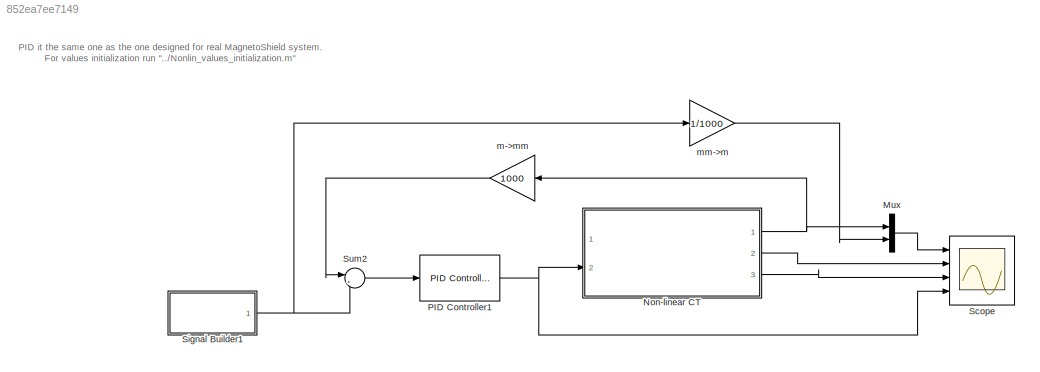
MODEL slx_852ea7ee7149
KIND model
CONFIG AbsTol = auto
CONFIG EnableMultiTasking = off
CONFIG FixedStep = auto
CONFIG MaxStep = auto
CONFIG MinStep = auto
CONFIG RelTol = 1e-3
CONFIG SampleTimeConstraint = Unconstrained
CONFIG Solver = VariableStepAuto
CONFIG SolverName = VariableStepAuto
CONFIG StartTime = 0.0
CONFIG StopTime = 15
BLOCK [Mux] Mux
  DisplayOption = bar
  Inputs = 2
  Ports = [2, 1]
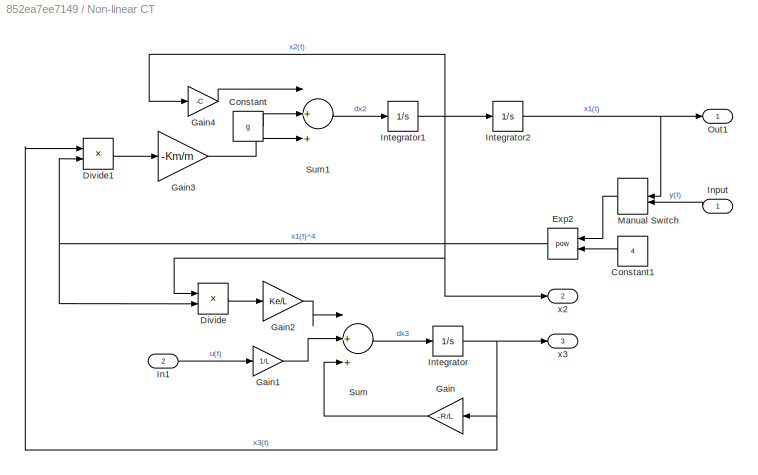
BLOCK [SubSystem] Non-linear CT
  Ports = [2, 3]
  RequestExecContextInheritance = off
BLOCK [Constant] Non-linear CT/Constant
  Value = g
BLOCK [Constant] Non-linear CT/Constant1
  Value = 4
BLOCK [Product] Non-linear CT/Divide
  InputSameDT = off
  Inputs = */
  OutDataTypeStr = Inherit: Inherit via internal rule
  Ports = [2, 1]
  RndMeth = Floor
  SaturateOnIntegerOverflow = off
BLOCK [Product] Non-linear CT/Divide1
  InputSameDT = off
  Inputs = */
  OutDataTypeStr = Inherit: Inherit via internal rule
  Ports = [2, 1]
  RndMeth = Floor
  SaturateOnIntegerOverflow = off
BLOCK [Math] Non-linear CT/Exp2
  Operator = pow
  Ports = [2, 1]
BLOCK [Gain] Non-linear CT/Gain
  Gain = -R/L
  OutDataTypeStr = Inherit: Inherit via internal rule
  ParamDataTypeStr = Inherit: Inherit via internal rule
  SaturateOnIntegerOverflow = off
BLOCK [Gain] Non-linear CT/Gain1
  Gain = 1/L
  OutDataTypeStr = Inherit: Inherit via internal rule
  ParamDataTypeStr = Inherit: Inherit via internal rule
  SaturateOnIntegerOverflow = off
BLOCK [Gain] Non-linear CT/Gain2
  Gain = Ke/L
  OutDataTypeStr = Inherit: Inherit via internal rule
  ParamDataTypeStr = Inherit: Inherit via internal rule
  SaturateOnIntegerOverflow = off
BLOCK [Gain] Non-linear CT/Gain3
  Gain = -Km/m
  OutDataTypeStr = Inherit: Inherit via internal rule
  ParamDataTypeStr = Inherit: Inherit via internal rule
  SaturateOnIntegerOverflow = off
BLOCK [Gain] Non-linear CT/Gain4
  Gain = -C
  OutDataTypeStr = Inherit: Inherit via internal rule
  ParamDataTypeStr = Inherit: Inherit via internal rule
  SaturateOnIntegerOverflow = off
BLOCK [Inport] Non-linear CT/In1
  IconDisplay = Signal name
  Port = 2
BLOCK [Inport] Non-linear CT/Input
  IconDisplay = Signal name
BLOCK [Integrator] Non-linear CT/Integrator
  Ports = [1, 1]
BLOCK [Integrator] Non-linear CT/Integrator1
  Ports = [1, 1]
BLOCK [Integrator] Non-linear CT/Integrator2
  InitialCondition = 0.017
  Ports = [1, 1]
BLOCK [ManualSwitch] Non-linear CT/Manual Switch
BLOCK [Outport] Non-linear CT/Out1
  IconDisplay = Signal name
BLOCK [Sum] Non-linear CT/Sum
  InputSameDT = off
  Inputs = |+++
  OutDataTypeStr = Inherit: Inherit via internal rule
  Ports = [3, 1]
  SaturateOnIntegerOverflow = off
BLOCK [Sum] Non-linear CT/Sum1
  InputSameDT = off
  Inputs = |+++
  OutDataTypeStr = Inherit: Inherit via internal rule
  Ports = [3, 1]
  SaturateOnIntegerOverflow = off
BLOCK [Outport] Non-linear CT/x2
  IconDisplay = Signal name
  Port = 2
BLOCK [Outport] Non-linear CT/x3
  IconDisplay = Signal name
  Port = 3
BLOCK [Reference] PID Controller1  REF=simulink/Continuous/PID Controller
  Ports = [1, 1]
  SourceBlock = simulink/Continuous/PID Controller
  SourceProductBaseCode = SL
  SourceProductName = Simulink
  SourceType = PID 1dof
BLOCK [Scope] Scope
  Floating = off
  NumInputPorts = 4
  Ports = [4]
  ScopeSpecificationString = Simulink.scopes.TimeScopeBlockCfg('CurrentConfiguration', extmgr.ConfigurationSet(extmgr.Configuration('Core','General UI',true),extmgr.Configuration('Core','Source UI',true),extmgr.Configuration('Sources','WiredSimulink',true),extmgr.Configuration('Visuals','Time Domain',true,'SerializedDisplays',{struct('MinYLimReal','0.01039','MaxYLimReal','0.01897','YLabelReal','','MinYLimMag','0.01039','MaxYL...<+3448ch>
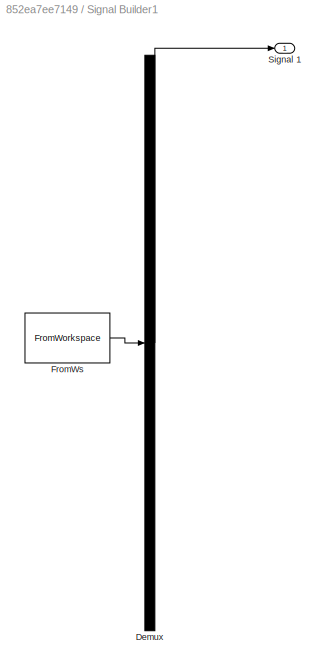
BLOCK [SubSystem] Signal Builder1
  ClipboardFcn = sigbuilder_block('clipboard');
  CloseFcn = sigbuilder_block('close');
  ContinueFcn = sigbuilder_block('continue');
  CopyFcn = sigbuilder_block('copy');
  DeleteFcn = sigbuilder_block('delete');
  LoadFcn = sigbuilder_block('load');
  MaskHideContents = on
  ModelCloseFcn = sigbuilder_block('modelClose');
  NameChangeFcn = sigbuilder_block('namechange');
  OpenFcn = sigbuilder_block('open',[434.4 169.8 550.8 400.2 ]);
  PauseFcn = sigbuilder_block('pause');
  Ports = [0, 1]
  PreSaveFcn = sigbuilder_block('preSave');
  RequestExecContextInheritance = off
  StartFcn = sigbuilder_block('start');
  StopFcn = sigbuilder_block('stop');
  Tag = STV Subsys
BLOCK [Demux] Signal Builder1/Demux
  Outputs = 1
  Ports = [1, 1]
  Tag = STV Demux
BLOCK [FromWorkspace] Signal Builder1/FromWs
  SampleTime = 0
  Tag = STV FromWs
  VariableName = tuvar
  ZeroCross = on
BLOCK [Outport] Signal Builder1/Signal 1
  IconDisplay = Port number
  Tag = STV Outport
BLOCK [Sum] Sum2
  IconShape = round
  InputSameDT = off
  Inputs = |+-
  OutDataTypeStr = Inherit: Inherit via internal rule
  Ports = [2, 1]
  SaturateOnIntegerOverflow = off
BLOCK [Gain] m->mm
  Gain = 1000
  OutDataTypeStr = Inherit: Inherit via internal rule
  ParamDataTypeStr = Inherit: Inherit via internal rule
  SaturateOnIntegerOverflow = off
BLOCK [Gain] mm->m
  Gain = 1/1000
  OutDataTypeStr = Inherit: Inherit via internal rule
  ParamDataTypeStr = Inherit: Inherit via internal rule
  SaturateOnIntegerOverflow = off
ANNOTATION (root): PID it the same one as the one designed for real MagnetoShield system. For values initialization run "../Nonlin_values_initialization.m"
LINE Mux:1 -> Scope:1
LINE Non-linear CT/Constant1:1 -> Non-linear CT/Exp2:2
LINE Non-linear CT/Constant:1 -> Non-linear CT/Sum1:2
LINE Non-linear CT/Divide1:1 -> Non-linear CT/Gain3:1
LINE Non-linear CT/Divide:1 -> Non-linear CT/Gain2:1
NET Non-linear CT/Exp2:1 -> Non-linear CT/Divide1:2, Non-linear CT/Divide:2
LINE Non-linear CT/Gain1:1 -> Non-linear CT/Sum:2
LINE Non-linear CT/Gain2:1 -> Non-linear CT/Sum:1
LINE Non-linear CT/Gain3:1 -> Non-linear CT/Sum1:3
LINE Non-linear CT/Gain4:1 -> Non-linear CT/Sum1:1
LINE Non-linear CT/Gain:1 -> Non-linear CT/Sum:3
LINE Non-linear CT/In1:1 -> Non-linear CT/Gain1:1
LINE Non-linear CT/Input:1 -> Non-linear CT/Manual Switch:2
NET Non-linear CT/Integrator1:1 -> Non-linear CT/Divide:1, Non-linear CT/Gain4:1, Non-linear CT/Integrator2:1, Non-linear CT/x2:1
NET Non-linear CT/Integrator2:1 -> Non-linear CT/Manual Switch:1, Non-linear CT/Out1:1
NET Non-linear CT/Integrator:1 -> Non-linear CT/Divide1:1, Non-linear CT/Gain:1, Non-linear CT/x3:1
LINE Non-linear CT/Manual Switch:1 -> Non-linear CT/Exp2:1
LINE Non-linear CT/Sum1:1 -> Non-linear CT/Integrator1:1
LINE Non-linear CT/Sum:1 -> Non-linear CT/Integrator:1
NET Non-linear CT:1 -> Mux:1, m->mm:1
LINE Non-linear CT:2 -> Scope:2
LINE Non-linear CT:3 -> Scope:3
NET PID Controller1:1 -> Non-linear CT:2, Scope:4
NET Signal Builder1:1 -> Sum2:2, mm->m:1
LINE Sum2:1 -> PID Controller1:1
LINE m->mm:1 -> Sum2:1
LINE mm->m:1 -> Mux:2
note: NET lines group one-source signal fan-out (src -> all destinations, sorted); 1:1 wires keep LINE
